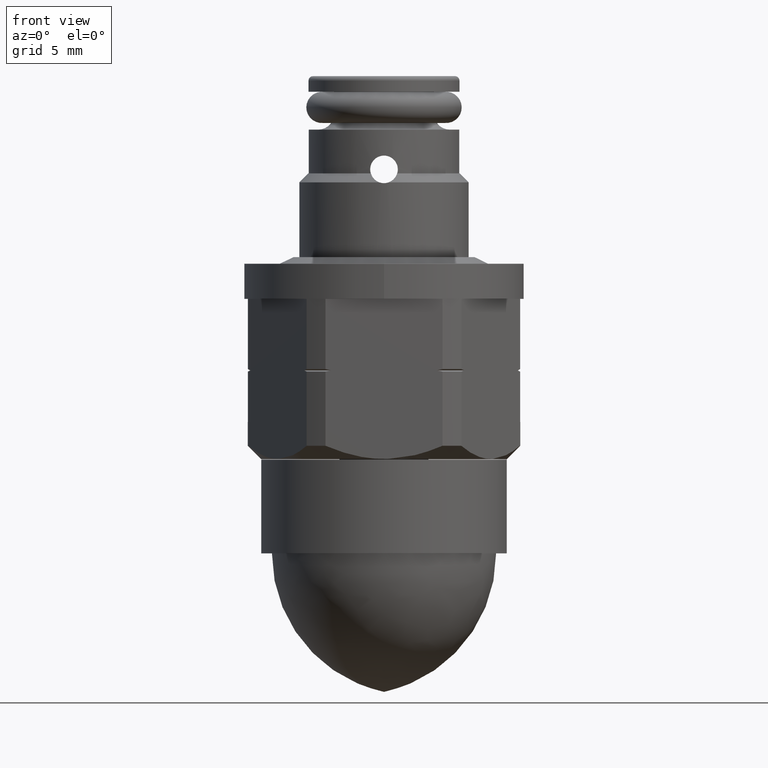
[diagram: clean part render]
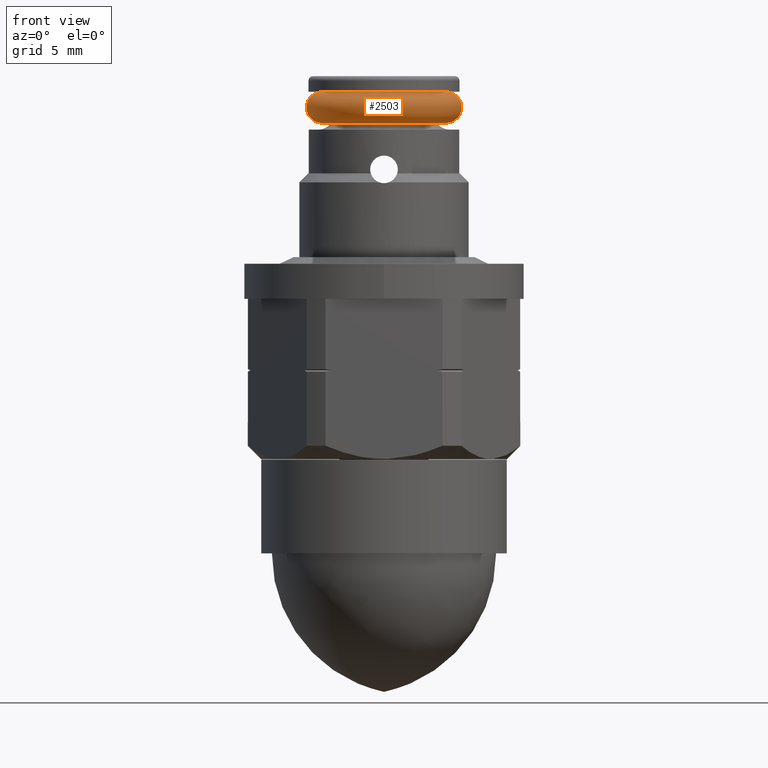
[diagram: same view with one face highlighted and labeled with its STEP entity id]
A machine part, front view. The second image highlights one B-rep face of the part: STEP entity #2503.
In plain terms, the highlighted toroidal blend (fillet) surface has major radius 3.5306 mm and minor (blend) radius 0.889 mm.
Its self-contained STEP definition (entity closure, byte-faithful):
#593=CARTESIAN_POINT('',(3.5306E0,0.E0,1.089E1));
#594=DIRECTION('',(0.E0,-1.E0,0.E0));
#595=DIRECTION('',(-7.390144469549E-1,0.E0,-6.736895777670E-1));
#596=AXIS2_PLACEMENT_3D('',#593,#594,#595);
#598=CARTESIAN_POINT('',(-3.5306E0,0.E0,1.089E1));
#599=DIRECTION('',(0.E0,-1.E0,0.E0));
#600=DIRECTION('',(7.714285714286E-1,0.E0,6.363159271806E-1));
#601=AXIS2_PLACEMENT_3D('',#598,#599,#600);
#603=CARTESIAN_POINT('',(0.E0,0.E0,1.145568485926E1));
#604=DIRECTION('',(0.E0,0.E0,1.E0));
#605=DIRECTION('',(-1.E0,0.E0,0.E0));
#606=AXIS2_PLACEMENT_3D('',#603,#604,#605);
#617=CARTESIAN_POINT('',(0.E0,0.E0,1.029108996537E1));
#618=DIRECTION('',(0.E0,0.E0,1.E0));
#619=DIRECTION('',(-1.E0,5.716326985060E-11,0.E0));
#620=AXIS2_PLACEMENT_3D('',#617,#618,#619);
#1824=CARTESIAN_POINT('',(-2.8448E0,0.E0,1.145568485926E1));
#1825=CARTESIAN_POINT('',(2.8448E0,0.E0,1.145568485926E1));
#1826=VERTEX_POINT('',#1824);
#1827=VERTEX_POINT('',#1825);
#1828=CARTESIAN_POINT('',(-2.873616156657E0,1.642652960640E-10,
1.029108996537E1));
#1829=CARTESIAN_POINT('',(2.873616156657E0,-1.642656474609E-10,
1.029108996537E1));
#1830=VERTEX_POINT('',#1828);
#1831=VERTEX_POINT('',#1829);
#2490=CARTESIAN_POINT('',(0.E0,0.E0,1.089E1));
#2491=DIRECTION('',(0.E0,0.E0,1.E0));
#2492=DIRECTION('',(1.E0,0.E0,0.E0));
#2493=AXIS2_PLACEMENT_3D('',#2490,#2491,#2492);
#2494=TOROIDAL_SURFACE('',#2493,3.5306E0,8.89E-1);
#2495=ORIENTED_EDGE('',*,*,#2476,.F.);
#2497=ORIENTED_EDGE('',*,*,#2496,.T.);
#2498=ORIENTED_EDGE('',*,*,#2473,.F.);
#2500=ORIENTED_EDGE('',*,*,#2499,.F.);
#2501=EDGE_LOOP('',(#2495,#2497,#2498,#2500));
#2502=FACE_OUTER_BOUND('',#2501,.F.);
#2503=ADVANCED_FACE('',(#2502),#2494,.T.);
#597=CIRCLE('',#596,8.89E-1);
#602=CIRCLE('',#601,8.89E-1);
#607=CIRCLE('',#606,2.8448E0);
#621=CIRCLE('',#620,2.873616156657E0);
#2473=EDGE_CURVE('',#1831,#1827,#597,.T.);
#2476=EDGE_CURVE('',#1826,#1830,#602,.T.);
#2496=EDGE_CURVE('',#1826,#1827,#607,.T.);
#2499=EDGE_CURVE('',#1830,#1831,#621,.T.);